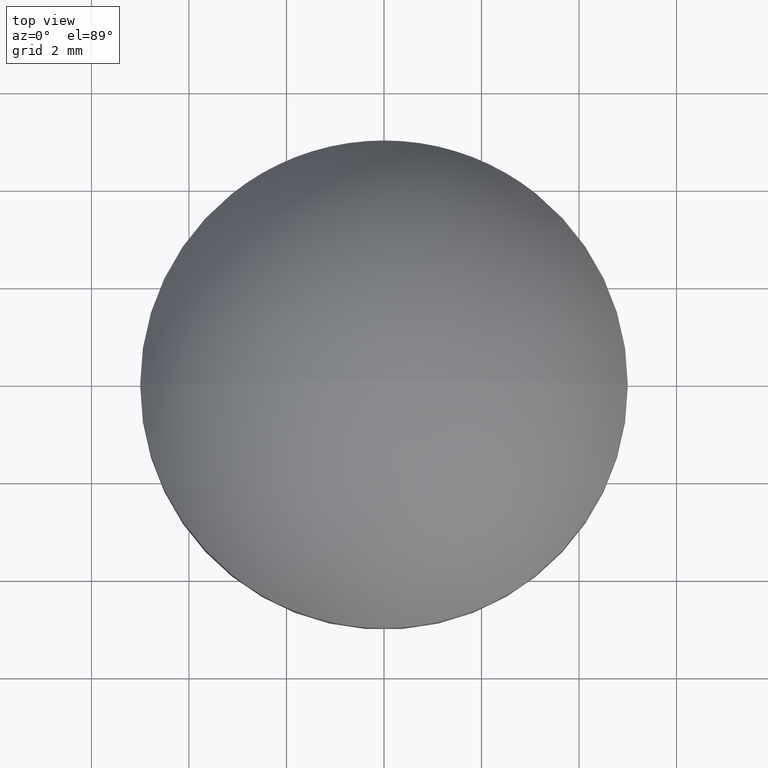
[diagram: clean part render]
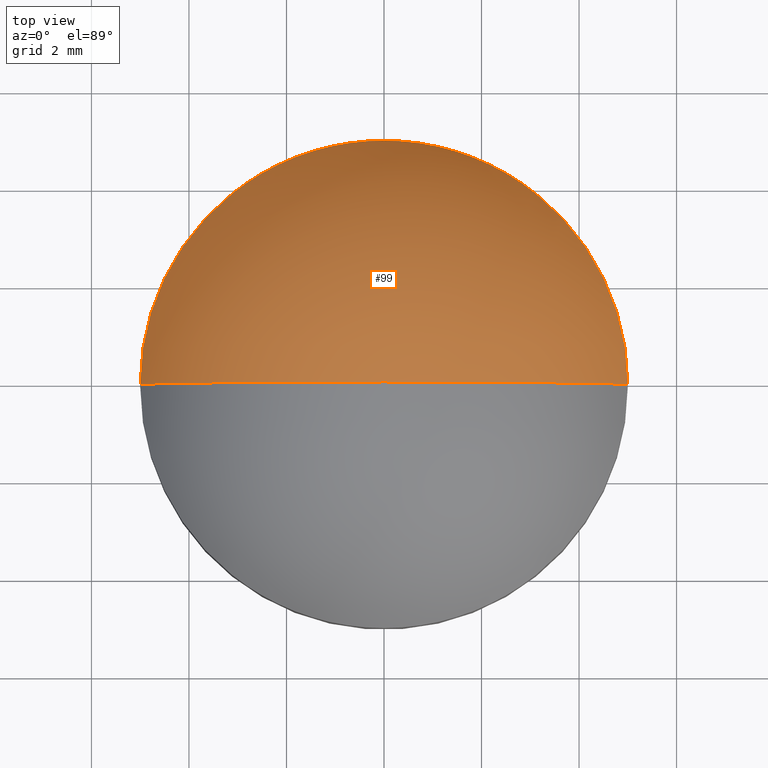
[diagram: same view with one face highlighted and labeled with its STEP entity id]
A machine part, top view. The second image highlights one B-rep face of the part: STEP entity #99.
In plain terms, the highlighted spherical surface has radius 5.8753 mm.
Its self-contained STEP definition (entity closure, byte-faithful):
#4 = DIRECTION ( 'NONE',  ( -0.000000000000000000, -1.000000000000000000, 0.000000000000000000 ) ) ;
#23 = CARTESIAN_POINT ( 'NONE',  ( -3.597575549097378931E-16, 0.000000000000000000, 5.000000000000000888 ) ) ;
#25 = DIRECTION ( 'NONE',  ( 1.000000000000000000, -1.224646799147353207E-16, 0.000000000000000000 ) ) ;
#41 = CIRCLE ( 'NONE', #143, 5.875286738351255700 ) ;
#63 = DIRECTION ( 'NONE',  ( -1.224646799147353207E-16, -1.000000000000000000, -0.000000000000000000 ) ) ;
#64 = DIRECTION ( 'NONE',  ( -1.000000000000000000, 0.000000000000000000, 0.000000000000000000 ) ) ;
#66 = CIRCLE ( 'NONE', #194, 5.875286738351255700 ) ;
#70 = ORIENTED_EDGE ( 'NONE', *, *, #166, .T. ) ;
#75 = AXIS2_PLACEMENT_3D ( 'NONE', #209, #4, #64 ) ;
#79 = CARTESIAN_POINT ( 'NONE',  ( -5.000000000000000000, 0.000000000000000000, 2.209999999999999964 ) ) ;
#99 = ADVANCED_FACE ( 'NONE', ( #152 ), #175, .T. ) ;
#100 = CARTESIAN_POINT ( 'NONE',  ( 0.000000000000000000, 0.000000000000000000, 2.209999999999999964 ) ) ;
#101 = CARTESIAN_POINT ( 'NONE',  ( 0.000000000000000000, 0.000000000000000000, -0.8752867383512550337 ) ) ;
#104 = VERTEX_POINT ( 'NONE', #79 ) ;
#107 = VERTEX_POINT ( 'NONE', #23 ) ;
#118 = CARTESIAN_POINT ( 'NONE',  ( 5.000000000000000000, 6.123233995736766282E-16, 2.209999999999999964 ) ) ;
#125 = DIRECTION ( 'NONE',  ( 0.000000000000000000, 0.000000000000000000, 1.000000000000000000 ) ) ;
#130 = EDGE_CURVE ( 'NONE', #148, #107, #41, .T. ) ;
#136 = AXIS2_PLACEMENT_3D ( 'NONE', #100, #161, #158 ) ;
#137 = ORIENTED_EDGE ( 'NONE', *, *, #130, .F. ) ;
#143 = AXIS2_PLACEMENT_3D ( 'NONE', #101, #63, #25 ) ;
#148 = VERTEX_POINT ( 'NONE', #118 ) ;
#152 = FACE_OUTER_BOUND ( 'NONE', #195, .T. ) ;
#156 = CARTESIAN_POINT ( 'NONE',  ( 0.000000000000000000, 0.000000000000000000, -0.8752867383512550337 ) ) ;
#157 = CIRCLE ( 'NONE', #136, 5.000000000000000000 ) ;
#158 = DIRECTION ( 'NONE',  ( 1.000000000000000000, 0.000000000000000000, 0.000000000000000000 ) ) ;
#161 = DIRECTION ( 'NONE',  ( 0.000000000000000000, 0.000000000000000000, 1.000000000000000000 ) ) ;
#165 = ORIENTED_EDGE ( 'NONE', *, *, #205, .T. ) ;
#166 = EDGE_CURVE ( 'NONE', #104, #107, #66, .T. ) ;
#175 = SPHERICAL_SURFACE ( 'NONE', #75, 5.875286738351255700 ) ;
#194 = AXIS2_PLACEMENT_3D ( 'NONE', #156, #206, #125 ) ;
#195 = EDGE_LOOP ( 'NONE', ( #137, #165, #70 ) ) ;
#205 = EDGE_CURVE ( 'NONE', #148, #104, #157, .T. ) ;
#206 = DIRECTION ( 'NONE',  ( 0.000000000000000000, 1.000000000000000000, 0.000000000000000000 ) ) ;
#209 = CARTESIAN_POINT ( 'NONE',  ( 0.000000000000000000, 0.000000000000000000, -0.8752867383512550337 ) ) ;